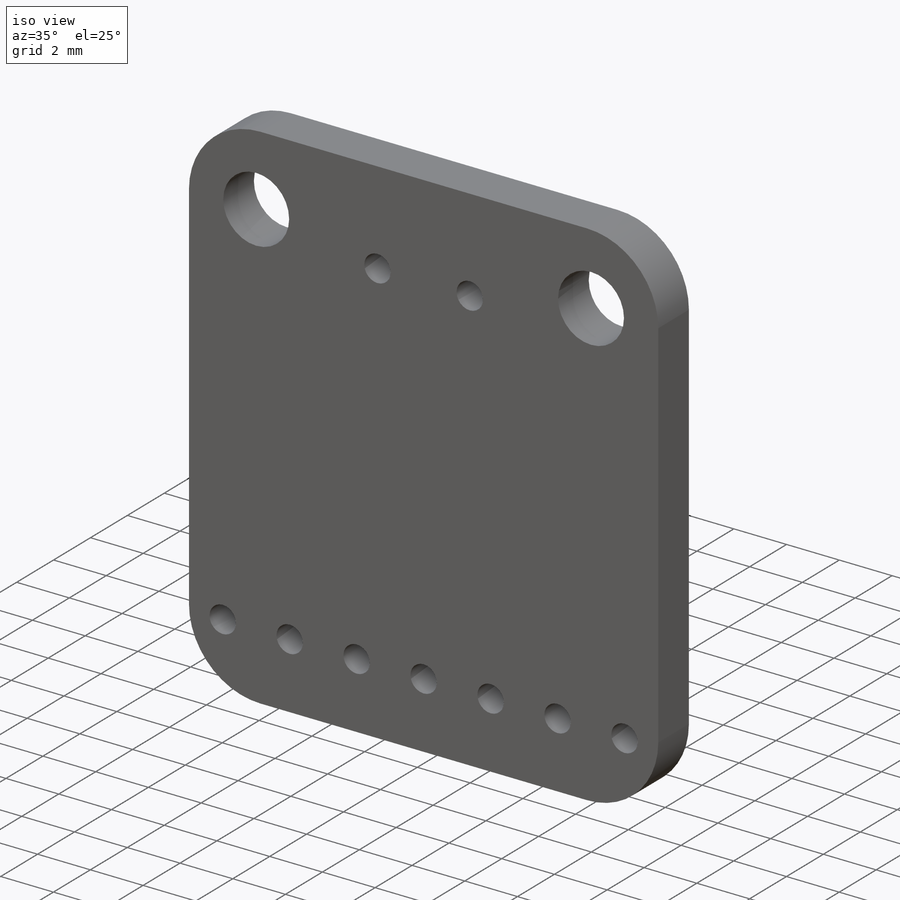
[diagram: iso view]
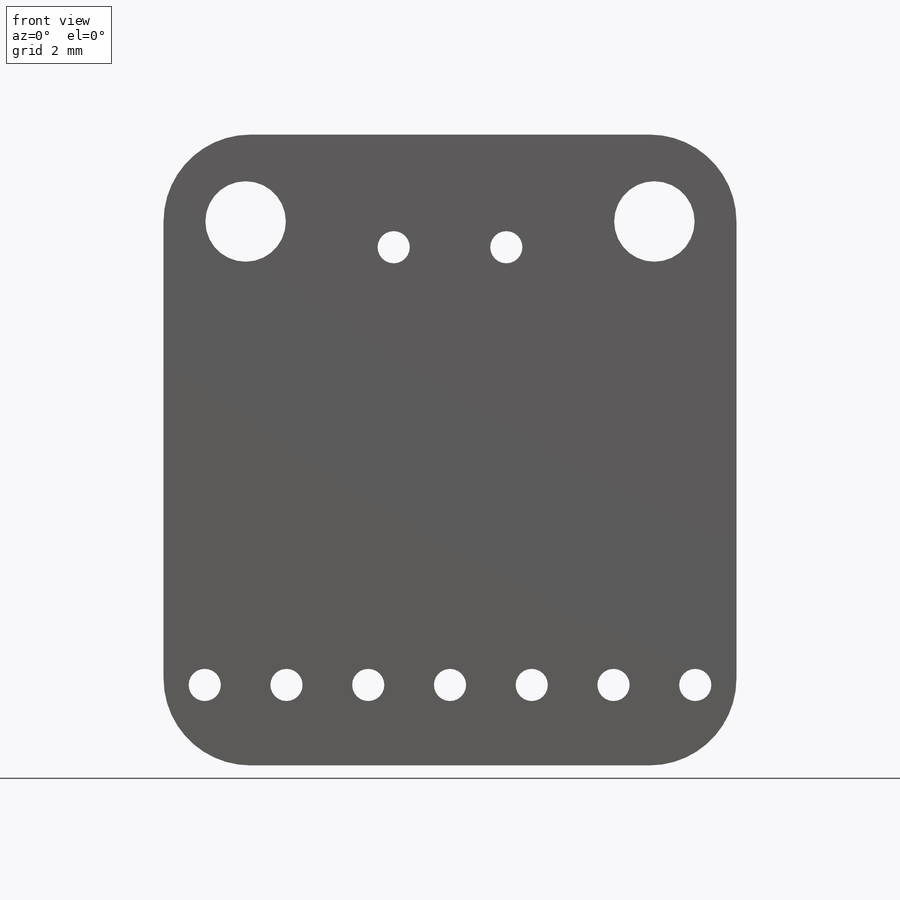
[diagram: front view]
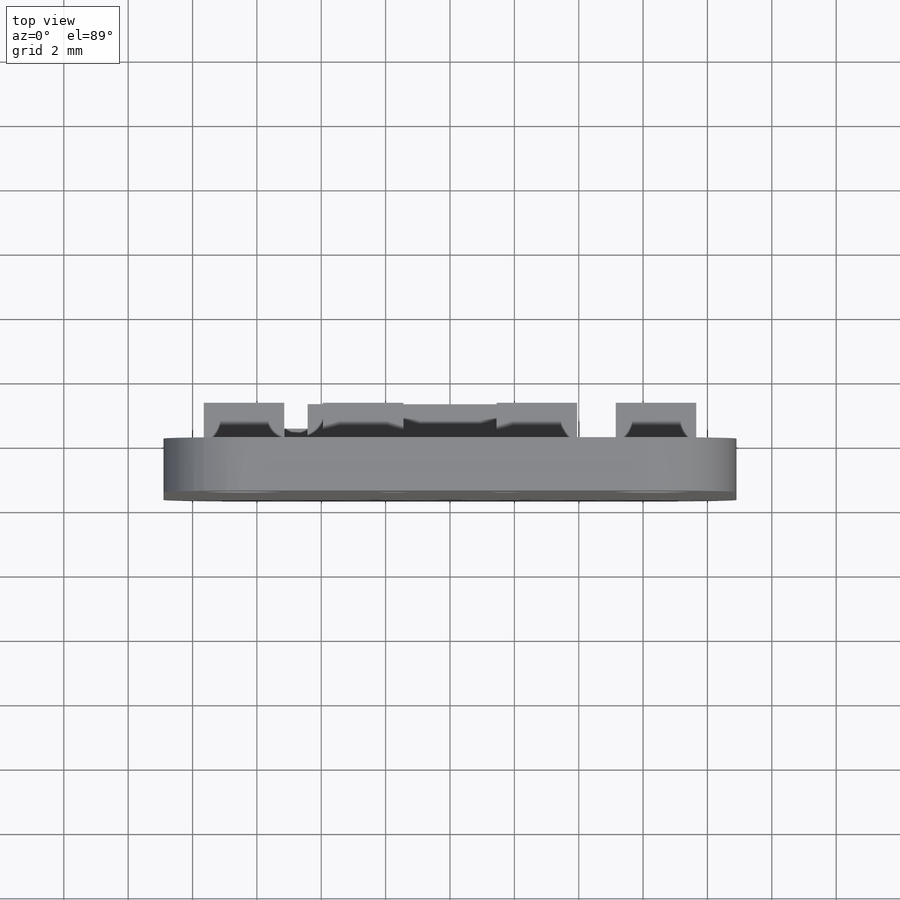
[diagram: top view]
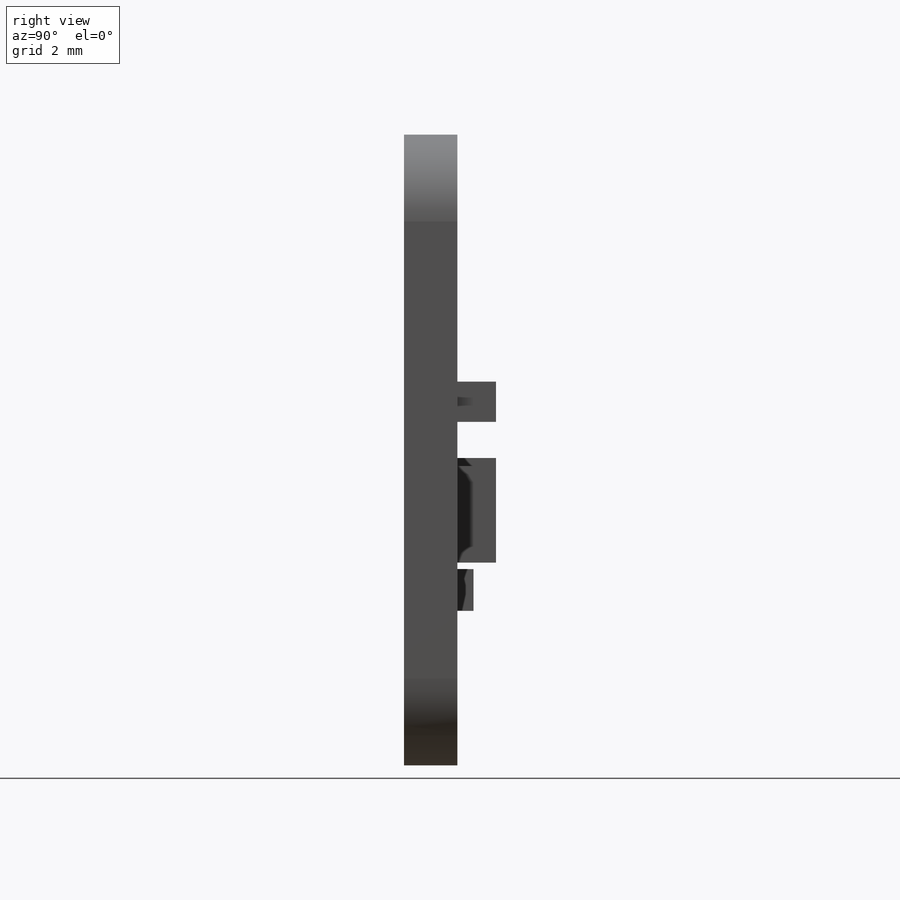
[diagram: right view]
SOLIDWORKS PART (.sldprt)
format: sldprt  version: not decoded by parser v0  size: 590,848 bytes
history: native  units: mm
features: sketch x10, extrude x4, hole x3, material x1, fillet x1, pattern_linear x1 (+12 scaffold rows collapsed)
feature tree (32):
  scaffold x12  (default folders/planes/origin — collapsed)
  material  "Material <not specified>"
  sketch  "Sketch1"  dims[D1=17.8mm D2=19.6mm]
  extrude  "Boss-Extrude1"  Depth=1.66mm
  fillet  "Fillet1"  Radius=2.7mm
  hole  "Ø2.5 (2.5) Diameter Hole1"  Diameter=2.5mm Depth=1.66mm
  sketch  "Sketch4"  dims[D1=12.7mm D2=2.7mm]
  sketch  "Sketch3"  dims[hole-wizard template sketch: 60 standard entries collapsed; hole parameters kept: c18.Thru Hole Depth=1.66mm]
  hole  "Ø1.0 (1) Diameter Hole1"  Diameter=1mm Depth=32mm
  sketch  "Sketch6"  dims[D1=3.5mm D2=3.5mm]
  sketch  "Sketch5"  dims[hole-wizard template sketch: 47 standard entries collapsed; hole parameters kept: c15.Hole Depth=32.0mm c15.D3=~14.816244mm c15.Drill Angle=118.0deg]
  hole  "Ø1.0 (1) Diameter Hole2"  Diameter=1mm Depth=1.66mm
  sketch  "Sketch8"  dims[D1=7.62mm D2=2.5mm]
  sketch  "Sketch7"  dims[hole-wizard template sketch: 47 standard entries collapsed; hole parameters kept: c15.Hole Depth=1.66mm c15.D3=~14.816244mm c15.Drill Angle=118.0deg]
  pattern_linear  "LPattern1"  Count1=7 Count2=1 Spacing1=2.54mm Spacing2=1mm
  sketch  "Sketch9"  dims[D1=3.0mm D2=6.3mm]
  extrude  "Boss-Extrude2"  Depth=1.2mm
  sketch  "Sketch10"  dims[D1=2.5mm D2=1.25mm D3=1.5mm D4=6.4mm D5=6.2mm D6=3.0mm D7=3.8mm D8=2.2mm]
  extrude  "Boss-Extrude3"  Depth=1.2mm
  sketch  "Sketch11"  dims[c1.D1=1.3mm c1.D2=2.4mm c1.D3=2.9mm c1.D4=4.8mm c2.D2=3.7mm c2.D4=3.6mm]
  extrude  "Boss-Extrude4"  Depth=0.5mm
decode coverage: 19 of 19 modeling features carry decoded parameters
note: ~ marks probable driven/reference dimensions
note: suppression state not decoded; provenance and decode notes live in map.json
